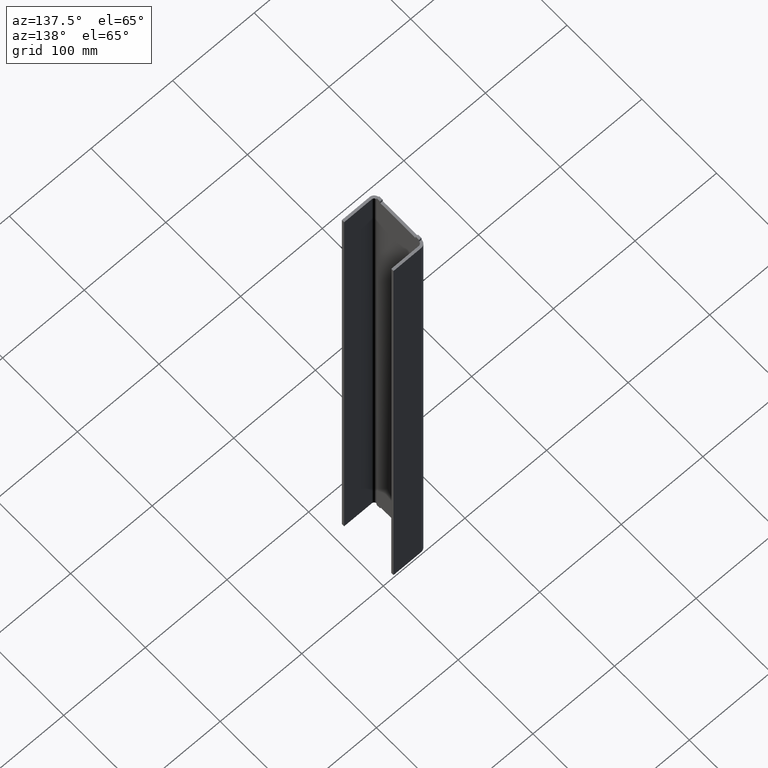
[diagram: clean part render]
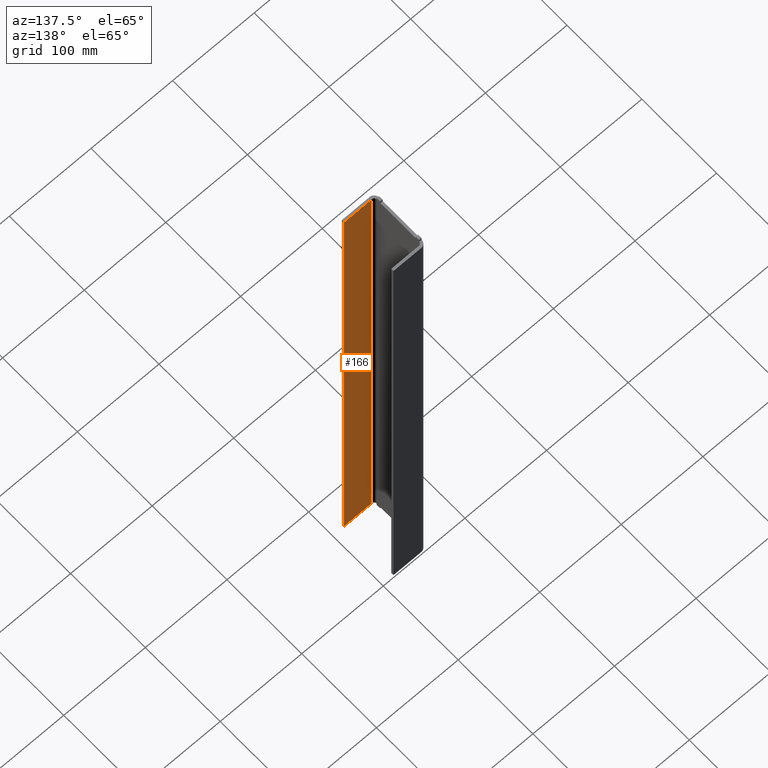
[diagram: same view with one face highlighted and labeled with its STEP entity id]
A machine part, auxiliary view. The second image highlights one B-rep face of the part: STEP entity #166.
In plain terms, the highlighted planar face has unit normal (0, -1, 0).
Its self-contained STEP definition (entity closure, byte-faithful):
#1 = EDGE_CURVE ( 'NONE', #977, #505, #1133, .T. ) ;
#22 = LINE ( 'NONE', #1120, #115 ) ;
#84 = CARTESIAN_POINT ( 'NONE',  ( -343.9999999999996589, -1163.305262667904117, 104.7558775263622834 ) ) ;
#100 = LINE ( 'NONE', #981, #867 ) ;
#115 = VECTOR ( 'NONE', #1225, 1000.000000000000000 ) ;
#153 = EDGE_LOOP ( 'NONE', ( #390, #896, #943, #729 ) ) ;
#166 = ADVANCED_FACE ( 'NONE', ( #1164 ), #249, .F. ) ;
#168 = EDGE_CURVE ( 'NONE', #977, #741, #100, .T. ) ;
#191 = EDGE_CURVE ( 'NONE', #741, #609, #22, .T. ) ;
#209 = CARTESIAN_POINT ( 'NONE',  ( -309.9999999999996021, -1163.305262667903889, -624.9999999999997726 ) ) ;
#244 = CARTESIAN_POINT ( 'NONE',  ( 1090.972523324354370, -1163.305262667896159, 25.00000000000045119 ) ) ;
#249 = PLANE ( 'NONE',  #1061 ) ;
#287 = DIRECTION ( 'NONE',  ( 1.000000000000000000, 5.551115123125788224E-15, 0.000000000000000000 ) ) ;
#323 = VECTOR ( 'NONE', #648, 1000.000000000000000 ) ;
#327 = EDGE_CURVE ( 'NONE', #505, #609, #1055, .T. ) ;
#390 = ORIENTED_EDGE ( 'NONE', *, *, #1, .F. ) ;
#482 = CARTESIAN_POINT ( 'NONE',  ( -343.9999999999996589, -1163.305262667903889, -624.9999999999997726 ) ) ;
#505 = VERTEX_POINT ( 'NONE', #662 ) ;
#557 = CARTESIAN_POINT ( 'NONE',  ( 1090.972523324354370, -1163.305262667896159, 104.7558775263622834 ) ) ;
#609 = VERTEX_POINT ( 'NONE', #482 ) ;
#625 = VECTOR ( 'NONE', #1263, 1000.000000000000000 ) ;
#648 = DIRECTION ( 'NONE',  ( -1.000000000000000000, -5.551115123125788224E-15, -0.000000000000000000 ) ) ;
#662 = CARTESIAN_POINT ( 'NONE',  ( -343.9999999999996589, -1163.305262667904117, 25.00000000000045119 ) ) ;
#729 = ORIENTED_EDGE ( 'NONE', *, *, #327, .F. ) ;
#741 = VERTEX_POINT ( 'NONE', #209 ) ;
#867 = VECTOR ( 'NONE', #889, 1000.000000000000000 ) ;
#889 = DIRECTION ( 'NONE',  ( 0.000000000000000000, -0.000000000000000000, -1.000000000000000000 ) ) ;
#896 = ORIENTED_EDGE ( 'NONE', *, *, #168, .T. ) ;
#902 = DIRECTION ( 'NONE',  ( 5.551115123125788224E-15, -1.000000000000000000, 0.000000000000000000 ) ) ;
#943 = ORIENTED_EDGE ( 'NONE', *, *, #191, .T. ) ;
#977 = VERTEX_POINT ( 'NONE', #1252 ) ;
#981 = CARTESIAN_POINT ( 'NONE',  ( -309.9999999999996021, -1163.305262667903889, 104.7558775263622834 ) ) ;
#1055 = LINE ( 'NONE', #84, #625 ) ;
#1061 = AXIS2_PLACEMENT_3D ( 'NONE', #557, #902, #287 ) ;
#1120 = CARTESIAN_POINT ( 'NONE',  ( 1090.972523324354370, -1163.305262667896159, -624.9999999999997726 ) ) ;
#1133 = LINE ( 'NONE', #244, #323 ) ;
#1164 = FACE_OUTER_BOUND ( 'NONE', #153, .T. ) ;
#1225 = DIRECTION ( 'NONE',  ( -1.000000000000000000, -5.551115123125788224E-15, -0.000000000000000000 ) ) ;
#1252 = CARTESIAN_POINT ( 'NONE',  ( -309.9999999999996021, -1163.305262667903889, 25.00000000000045119 ) ) ;
#1263 = DIRECTION ( 'NONE',  ( 0.000000000000000000, -0.000000000000000000, -1.000000000000000000 ) ) ;